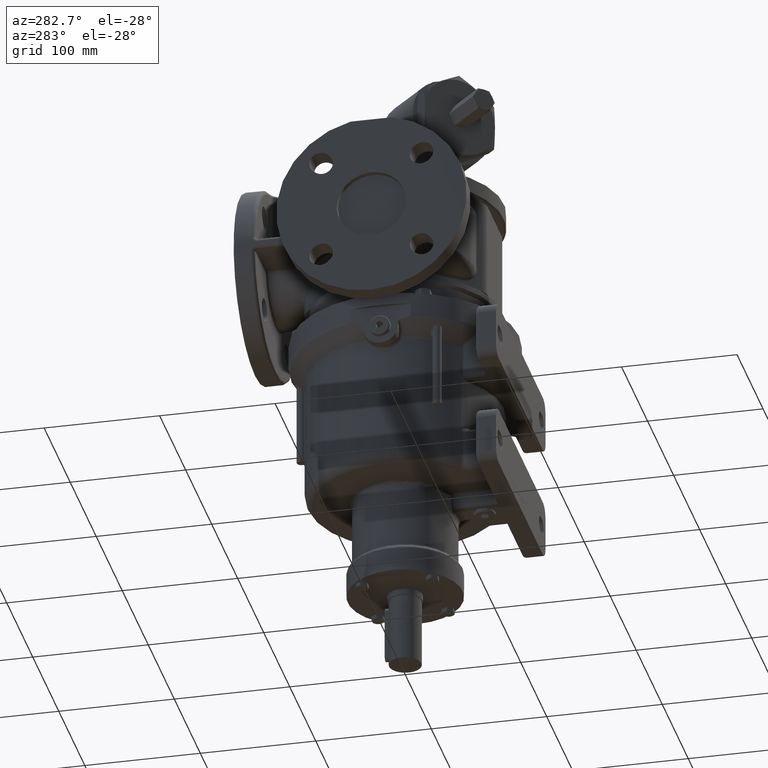
[diagram: clean part render]
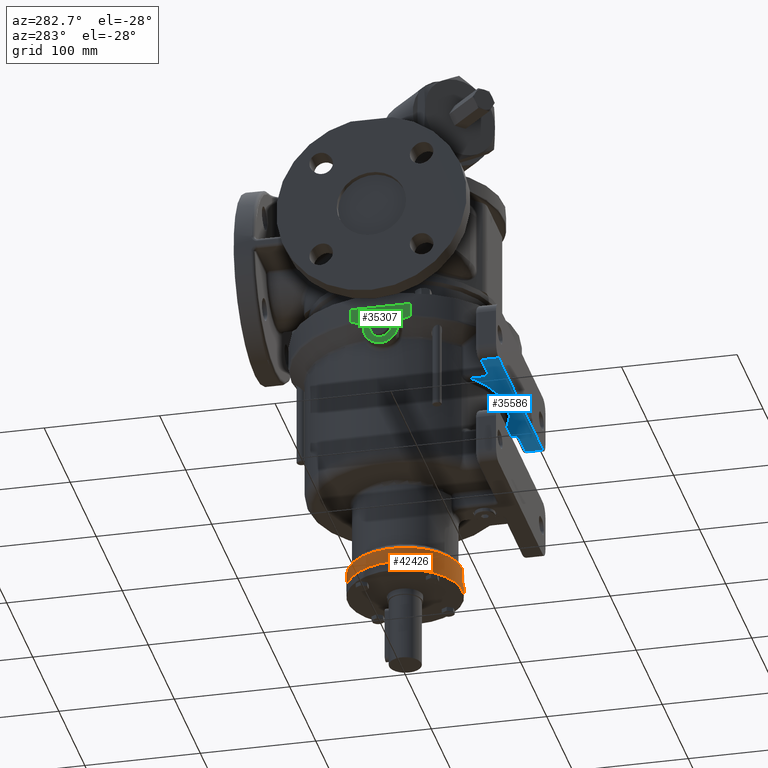
[diagram: same view with three faces highlighted in distinct colors, each labeled with its STEP entity id]
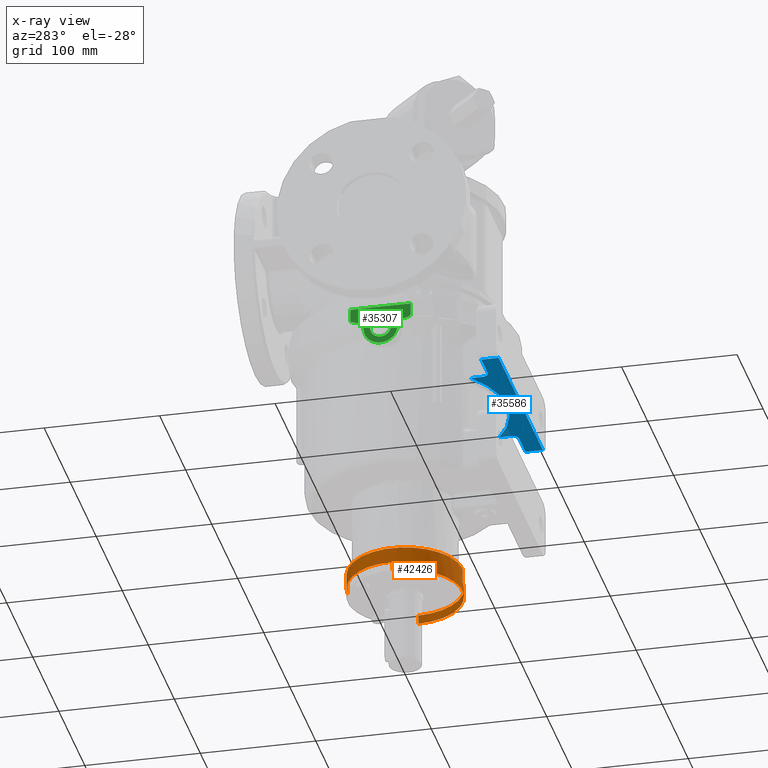
[diagram: x-ray of the same camera — body ghosted, the three highlighted faces saturated]
A machine part, auxiliary view with three faces highlighted in distinct colors.
The next image is the same camera in x-ray (body ghosted, the three faces saturated) — at least one of them is partly hidden behind the body in this view.
Their STEP definitions:

[orange] entity #42426 — the highlighted cylindrical surface (partial cylindrical patch) has radius 49.75 mm, axis along (0, 0, 1).
#10379=CARTESIAN_POINT('',(0.E0,0.E0,-2.285E2));
#10380=DIRECTION('',(0.E0,0.E0,-1.E0));
#10381=DIRECTION('',(1.E0,0.E0,0.E0));
#10382=AXIS2_PLACEMENT_3D('',#10379,#10380,#10381);
#10384=CARTESIAN_POINT('',(0.E0,0.E0,-2.205E2));
#10385=DIRECTION('',(0.E0,0.E0,1.E0));
#10386=DIRECTION('',(0.E0,1.E0,0.E0));
#10387=AXIS2_PLACEMENT_3D('',#10384,#10385,#10386);
#10389=CARTESIAN_POINT('',(0.E0,0.E0,-2.075E2));
#10390=DIRECTION('',(0.E0,0.E0,-1.E0));
#10391=DIRECTION('',(0.E0,-1.E0,0.E0));
#10392=AXIS2_PLACEMENT_3D('',#10389,#10390,#10391);
#10394=DIRECTION('',(0.E0,0.E0,-1.E0));
#10395=VECTOR('',#10394,1.3E1);
#10396=CARTESIAN_POINT('',(-1.906908229874E-14,4.975E1,-2.075E2));
#10397=LINE('',#10396,#10395);
#10398=DIRECTION('',(0.E0,0.E0,1.E0));
#10399=VECTOR('',#10398,8.E0);
#10400=CARTESIAN_POINT('',(-4.975E1,3.695923874484E-14,-2.285E2));
#10401=LINE('',#10400,#10399);
#10407=DIRECTION('',(0.E0,0.E0,1.E0));
#10408=VECTOR('',#10407,8.E0);
#10409=CARTESIAN_POINT('',(4.975E1,-5.103500849649E-14,-2.285E2));
#10410=LINE('',#10409,#10408);
#10411=CARTESIAN_POINT('',(0.E0,0.E0,-2.205E2));
#10412=DIRECTION('',(0.E0,0.E0,1.E0));
#10413=DIRECTION('',(0.E0,-1.E0,0.E0));
#10414=AXIS2_PLACEMENT_3D('',#10411,#10412,#10413);
#10416=DIRECTION('',(0.E0,0.E0,-1.E0));
#10417=VECTOR('',#10416,1.3E1);
#10418=CARTESIAN_POINT('',(0.E0,-4.975E1,-2.075E2));
#10419=LINE('',#10418,#10417);
#21264=CARTESIAN_POINT('',(0.E0,4.975E1,-2.075E2));
#21265=CARTESIAN_POINT('',(1.218523565152E-14,-4.975E1,-2.075E2));
#21266=VERTEX_POINT('',#21264);
#21267=VERTEX_POINT('',#21265);
#21805=CARTESIAN_POINT('',(4.975E1,-2.663705417500E-14,-2.285E2));
#21806=CARTESIAN_POINT('',(-4.975E1,2.054447634924E-14,-2.285E2));
#21807=VERTEX_POINT('',#21805);
#21808=VERTEX_POINT('',#21806);
#21825=CARTESIAN_POINT('',(0.E0,4.975E1,-2.205E2));
#21826=CARTESIAN_POINT('',(-4.975E1,4.114058746720E-14,-2.205E2));
#21827=VERTEX_POINT('',#21825);
#21828=VERTEX_POINT('',#21826);
#21829=CARTESIAN_POINT('',(1.218523565152E-14,-4.975E1,-2.205E2));
#21830=CARTESIAN_POINT('',(4.975E1,-7.923480602153E-14,-2.205E2));
#21831=VERTEX_POINT('',#21829);
#21832=VERTEX_POINT('',#21830);
#42404=CARTESIAN_POINT('',(0.E0,0.E0,-2.37975E2));
#42405=DIRECTION('',(0.E0,0.E0,1.E0));
#42406=DIRECTION('',(0.E0,-1.E0,0.E0));
#42407=AXIS2_PLACEMENT_3D('',#42404,#42405,#42406);
#42408=CYLINDRICAL_SURFACE('',#42407,4.975E1);
#42410=ORIENTED_EDGE('',*,*,#42409,.T.);
#42412=ORIENTED_EDGE('',*,*,#42411,.T.);
#42414=ORIENTED_EDGE('',*,*,#42413,.F.);
#42416=ORIENTED_EDGE('',*,*,#42415,.T.);
#42418=ORIENTED_EDGE('',*,*,#42417,.T.);
#42420=ORIENTED_EDGE('',*,*,#42419,.F.);
#42422=ORIENTED_EDGE('',*,*,#42421,.F.);
#42423=ORIENTED_EDGE('',*,*,#39476,.F.);
#42424=EDGE_LOOP('',(#42410,#42412,#42414,#42416,#42418,#42420,#42422,#42423));
#42425=FACE_OUTER_BOUND('',#42424,.F.);
#42426=ADVANCED_FACE('',(#42425),#42408,.T.);
#10383=CIRCLE('',#10382,4.975E1);
#10388=CIRCLE('',#10387,4.975E1);
#10393=CIRCLE('',#10392,4.975E1);
#10415=CIRCLE('',#10414,4.975E1);
#39476=EDGE_CURVE('',#21267,#21266,#10393,.T.);
#42409=EDGE_CURVE('',#21267,#21831,#10419,.T.);
#42411=EDGE_CURVE('',#21831,#21832,#10415,.T.);
#42413=EDGE_CURVE('',#21807,#21832,#10410,.T.);
#42415=EDGE_CURVE('',#21807,#21808,#10383,.T.);
#42417=EDGE_CURVE('',#21808,#21828,#10401,.T.);
#42419=EDGE_CURVE('',#21827,#21828,#10388,.T.);
#42421=EDGE_CURVE('',#21266,#21827,#10397,.T.);

[blue] entity #35586 — the highlighted planar face has unit normal (0, 0, -1).
#6345=DIRECTION('',(1.E0,0.E0,0.E0));
#6346=VECTOR('',#6345,1.7E2);
#6347=CARTESIAN_POINT('',(-8.5E1,-1.E2,-5.55E1));
#6348=LINE('',#6347,#6346);
#6349=DIRECTION('',(0.E0,1.E0,0.E0));
#6350=VECTOR('',#6349,1.5E1);
#6351=CARTESIAN_POINT('',(8.5E1,-1.E2,-5.55E1));
#6352=LINE('',#6351,#6350);
#6353=DIRECTION('',(1.E0,0.E0,0.E0));
#6354=VECTOR('',#6353,2.45E1);
#6355=CARTESIAN_POINT('',(6.05E1,-8.5E1,-5.55E1));
#6356=LINE('',#6355,#6354);
#6357=CARTESIAN_POINT('',(6.05E1,-7.9E1,-5.55E1));
#6358=DIRECTION('',(0.E0,0.E0,1.E0));
#6359=DIRECTION('',(-1.E0,0.E0,0.E0));
#6360=AXIS2_PLACEMENT_3D('',#6357,#6358,#6359);
#6362=DIRECTION('',(0.E0,-1.E0,0.E0));
#6363=VECTOR('',#6362,9.907670469147E0);
#6364=CARTESIAN_POINT('',(5.45E1,-6.909232953085E1,-5.55E1));
#6365=LINE('',#6364,#6363);
#6366=DIRECTION('',(0.E0,1.E0,0.E0));
#6367=VECTOR('',#6366,9.907670469147E0);
#6368=CARTESIAN_POINT('',(-5.45E1,-7.9E1,-5.55E1));
#6369=LINE('',#6368,#6367);
#6370=CARTESIAN_POINT('',(-6.05E1,-7.9E1,-5.55E1));
#6371=DIRECTION('',(0.E0,0.E0,1.E0));
#6372=DIRECTION('',(-2.605323364454E-14,-1.E0,0.E0));
#6373=AXIS2_PLACEMENT_3D('',#6370,#6371,#6372);
#6375=DIRECTION('',(1.E0,0.E0,0.E0));
#6376=VECTOR('',#6375,2.45E1);
#6377=CARTESIAN_POINT('',(-8.5E1,-8.5E1,-5.55E1));
#6378=LINE('',#6377,#6376);
#6379=DIRECTION('',(0.E0,-1.E0,0.E0));
#6380=VECTOR('',#6379,1.5E1);
#6381=CARTESIAN_POINT('',(-8.5E1,-8.5E1,-5.55E1));
#6382=LINE('',#6381,#6380);
#7355=CARTESIAN_POINT('',(-5.45E1,-6.909232953085E1,-5.55E1));
#8774=CARTESIAN_POINT('',(5.45E1,-6.909232953085E1,-5.55E1));
#8883=CARTESIAN_POINT('',(0.E0,0.E0,-5.55E1));
#8884=DIRECTION('',(0.E0,0.E0,1.E0));
#8885=DIRECTION('',(-6.193181818182E-1,-7.851401083051E-1,0.E0));
#8886=AXIS2_PLACEMENT_3D('',#8883,#8884,#8885);
#21458=CARTESIAN_POINT('',(8.5E1,-8.5E1,-5.55E1));
#21459=VERTEX_POINT('',#21458);
#21462=CARTESIAN_POINT('',(6.05E1,-8.5E1,-5.55E1));
#21463=VERTEX_POINT('',#21462);
#21466=CARTESIAN_POINT('',(5.45E1,-7.9E1,-5.55E1));
#21467=VERTEX_POINT('',#21466);
#21496=CARTESIAN_POINT('',(-6.05E1,-8.5E1,-5.55E1));
#21497=CARTESIAN_POINT('',(-5.45E1,-7.9E1,-5.55E1));
#21498=VERTEX_POINT('',#21496);
#21499=VERTEX_POINT('',#21497);
#21504=CARTESIAN_POINT('',(-8.5E1,-8.5E1,-5.55E1));
#21505=VERTEX_POINT('',#21504);
#21589=VERTEX_POINT('',#7355);
#21595=VERTEX_POINT('',#8774);
#21632=CARTESIAN_POINT('',(-8.5E1,-1.E2,-5.55E1));
#21633=CARTESIAN_POINT('',(8.5E1,-1.E2,-5.55E1));
#21634=VERTEX_POINT('',#21632);
#21635=VERTEX_POINT('',#21633);
#35560=CARTESIAN_POINT('',(-9.5E1,-1.03E2,-5.55E1));
#35561=DIRECTION('',(0.E0,0.E0,-1.E0));
#35562=DIRECTION('',(0.E0,1.E0,0.E0));
#35563=AXIS2_PLACEMENT_3D('',#35560,#35561,#35562);
#35564=PLANE('',#35563);
#35566=ORIENTED_EDGE('',*,*,#35565,.T.);
#35568=ORIENTED_EDGE('',*,*,#35567,.T.);
#35570=ORIENTED_EDGE('',*,*,#35569,.F.);
#35572=ORIENTED_EDGE('',*,*,#35571,.F.);
#35574=ORIENTED_EDGE('',*,*,#35573,.F.);
#35576=ORIENTED_EDGE('',*,*,#35575,.F.);
#35578=ORIENTED_EDGE('',*,*,#35577,.F.);
#35579=ORIENTED_EDGE('',*,*,#35550,.F.);
#35581=ORIENTED_EDGE('',*,*,#35580,.F.);
#35583=ORIENTED_EDGE('',*,*,#35582,.T.);
#35584=EDGE_LOOP('',(#35566,#35568,#35570,#35572,#35574,#35576,#35578,#35579,
#35581,#35583));
#35585=FACE_OUTER_BOUND('',#35584,.F.);
#35586=ADVANCED_FACE('',(#35585),#35564,.T.);
#6361=CIRCLE('',#6360,6.E0);
#6374=CIRCLE('',#6373,6.E0);
#8887=CIRCLE('',#8886,8.8E1);
#35550=EDGE_CURVE('',#21498,#21499,#6374,.T.);
#35565=EDGE_CURVE('',#21634,#21635,#6348,.T.);
#35567=EDGE_CURVE('',#21635,#21459,#6352,.T.);
#35569=EDGE_CURVE('',#21463,#21459,#6356,.T.);
#35571=EDGE_CURVE('',#21467,#21463,#6361,.T.);
#35573=EDGE_CURVE('',#21595,#21467,#6365,.T.);
#35575=EDGE_CURVE('',#21589,#21595,#8887,.T.);
#35577=EDGE_CURVE('',#21499,#21589,#6369,.T.);
#35580=EDGE_CURVE('',#21505,#21498,#6378,.T.);
#35582=EDGE_CURVE('',#21505,#21634,#6382,.T.);

[green] entity #35307 — the highlighted planar face has unit normal (1, 0, 0).
#6020=DIRECTION('',(0.E0,0.E0,1.E0));
#6021=VECTOR('',#6020,1.075735931288E1);
#6022=CARTESIAN_POINT('',(-9.5E1,2.602402735935E1,-1.075735931288E1));
#6023=LINE('',#6022,#6021);
#6159=DIRECTION('',(0.E0,0.E0,1.E0));
#6160=VECTOR('',#6159,1.075735931288E1);
#6161=CARTESIAN_POINT('',(-9.5E1,-2.602402735935E1,-1.075735931288E1));
#6162=LINE('',#6161,#6160);
#6168=DIRECTION('',(0.E0,1.E0,0.E0));
#6169=VECTOR('',#6168,5.204805471869E1);
#6170=CARTESIAN_POINT('',(-9.5E1,-2.602402735935E1,2.280841422416E-14));
#6171=LINE('',#6170,#6169);
#6172=CARTESIAN_POINT('',(-9.5E1,0.E0,-1.95E1));
#6173=DIRECTION('',(-1.E0,0.E0,0.E0));
#6174=DIRECTION('',(0.E0,-1.E0,0.E0));
#6175=AXIS2_PLACEMENT_3D('',#6172,#6173,#6174);
#6177=CARTESIAN_POINT('',(-9.5E1,0.E0,-1.95E1));
#6178=DIRECTION('',(-1.E0,0.E0,0.E0));
#6179=DIRECTION('',(0.E0,1.E0,0.E0));
#6180=AXIS2_PLACEMENT_3D('',#6177,#6178,#6179);
#6182=CARTESIAN_POINT('',(-9.5E1,-2.602402735935E1,-1.075735931288E1));
#6183=CARTESIAN_POINT('',(-9.5E1,-2.602402735935E1,-1.077876634053E1));
#6184=CARTESIAN_POINT('',(-9.5E1,-2.602228922231E1,-1.082174701972E1));
#6185=CARTESIAN_POINT('',(-9.5E1,-2.601439247119E1,-1.088651587326E1));
#6186=CARTESIAN_POINT('',(-9.5E1,-2.600097771708E1,-1.095218880590E1));
#6187=CARTESIAN_POINT('',(-9.5E1,-2.598165438894E1,-1.101916418562E1));
#6188=CARTESIAN_POINT('',(-9.5E1,-2.595585628909E1,-1.108790616760E1));
#6189=CARTESIAN_POINT('',(-9.5E1,-2.592282007476E1,-1.115887698069E1));
#6190=CARTESIAN_POINT('',(-9.5E1,-2.588155811491E1,-1.123255585912E1));
#6191=CARTESIAN_POINT('',(-9.5E1,-2.583082262835E1,-1.130943509460E1));
#6192=CARTESIAN_POINT('',(-9.5E1,-2.576905949618E1,-1.139002154177E1));
#6193=CARTESIAN_POINT('',(-9.5E1,-2.569435648396E1,-1.147482831608E1));
#6194=CARTESIAN_POINT('',(-9.5E1,-2.560437785030E1,-1.156436819514E1));
#6195=CARTESIAN_POINT('',(-9.5E1,-2.549629106406E1,-1.165914075882E1));
#6196=CARTESIAN_POINT('',(-9.5E1,-2.536663719405E1,-1.175964408733E1));
#6197=CARTESIAN_POINT('',(-9.5E1,-2.521143818487E1,-1.186618794277E1));
#6198=CARTESIAN_POINT('',(-9.5E1,-2.502670608981E1,-1.197858317398E1));
#6199=CARTESIAN_POINT('',(-9.5E1,-2.480829373420E1,-1.209637626300E1));
#6200=CARTESIAN_POINT('',(-9.5E1,-2.455147956071E1,-1.221907841222E1));
#6201=CARTESIAN_POINT('',(-9.5E1,-2.425100703984E1,-1.234606378886E1));
#6202=CARTESIAN_POINT('',(-9.5E1,-2.390118883754E1,-1.247651430762E1));
#6203=CARTESIAN_POINT('',(-9.5E1,-2.349522155608E1,-1.260956851266E1));
#6204=CARTESIAN_POINT('',(-9.5E1,-2.302647273712E1,-1.274395754368E1));
#6205=CARTESIAN_POINT('',(-9.5E1,-2.266382443389E1,-1.283417417449E1));
#6206=CARTESIAN_POINT('',(-9.5E1,-2.247047364031E1,-1.287867965644E1));
#6804=CARTESIAN_POINT('',(-9.5E1,2.247047364031E1,-1.287867965644E1));
#6805=CARTESIAN_POINT('',(-9.5E1,2.266381945337E1,-1.283417532091E1));
#6806=CARTESIAN_POINT('',(-9.5E1,2.302645999464E1,-1.274396082169E1));
#6807=CARTESIAN_POINT('',(-9.5E1,2.349520334809E1,-1.260957404066E1));
#6808=CARTESIAN_POINT('',(-9.5E1,2.390117206191E1,-1.247652020689E1));
#6809=CARTESIAN_POINT('',(-9.5E1,2.425099611652E1,-1.234606821720E1));
#6810=CARTESIAN_POINT('',(-9.5E1,2.455147502064E1,-1.221908053455E1));
#6811=CARTESIAN_POINT('',(-9.5E1,2.480829245505E1,-1.209637694918E1));
#6812=CARTESIAN_POINT('',(-9.5E1,2.502670620991E1,-1.197858313304E1));
#6813=CARTESIAN_POINT('',(-9.5E1,2.521143938208E1,-1.186618719280E1));
#6814=CARTESIAN_POINT('',(-9.5E1,2.536663863605E1,-1.175964303765E1));
#6815=CARTESIAN_POINT('',(-9.5E1,2.549629222387E1,-1.165913980166E1));
#6816=CARTESIAN_POINT('',(-9.5E1,2.560437890738E1,-1.156436721018E1));
#6817=CARTESIAN_POINT('',(-9.5E1,2.569435735752E1,-1.147482738621E1));
#6818=CARTESIAN_POINT('',(-9.5E1,2.576906021148E1,-1.139002067051E1));
#6819=CARTESIAN_POINT('',(-9.5E1,2.583082319438E1,-1.130943429708E1));
#6820=CARTESIAN_POINT('',(-9.5E1,2.588155855078E1,-1.123255514008E1));
#6821=CARTESIAN_POINT('',(-9.5E1,2.592282039396E1,-1.115887635239E1));
#6822=CARTESIAN_POINT('',(-9.5E1,2.595585650932E1,-1.108790563667E1));
#6823=CARTESIAN_POINT('',(-9.5E1,2.598165452840E1,-1.101916375648E1));
#6824=CARTESIAN_POINT('',(-9.5E1,2.600097779416E1,-1.095218848108E1));
#6825=CARTESIAN_POINT('',(-9.5E1,2.601439250385E1,-1.088651565511E1));
#6826=CARTESIAN_POINT('',(-9.5E1,2.602228922842E1,-1.082174690825E1));
#6827=CARTESIAN_POINT('',(-9.5E1,2.602402735935E1,-1.077876630306E1));
#6828=CARTESIAN_POINT('',(-9.5E1,2.602402735935E1,-1.075735931288E1));
#6856=CARTESIAN_POINT('',(-9.5E1,2.247047364031E1,-1.287867965644E1));
#6857=CARTESIAN_POINT('',(-9.5E1,2.192824920039E1,-1.300348886760E1));
#6858=CARTESIAN_POINT('',(-9.5E1,2.084549862991E1,-1.324415795765E1));
#6859=CARTESIAN_POINT('',(-9.5E1,1.922680506453E1,-1.357821014218E1));
#6860=CARTESIAN_POINT('',(-9.5E1,1.815060332488E1,-1.378306616397E1));
#6861=CARTESIAN_POINT('',(-9.5E1,1.761329098931E1,-1.388101625770E1));
#7031=CARTESIAN_POINT('',(-9.5E1,1.536090017432E1,-1.605229280953E1));
#7032=CARTESIAN_POINT('',(-9.5E1,1.539094053852E1,-1.597437110757E1));
#7033=CARTESIAN_POINT('',(-9.5E1,1.545384202943E1,-1.582295380255E1));
#7034=CARTESIAN_POINT('',(-9.5E1,1.555610804488E1,-1.560846732814E1));
#7035=CARTESIAN_POINT('',(-9.5E1,1.566509929819E1,-1.540743374147E1));
#7036=CARTESIAN_POINT('',(-9.5E1,1.577984483884E1,-1.521999188222E1));
#7037=CARTESIAN_POINT('',(-9.5E1,1.589938596128E1,-1.504621620468E1));
#7038=CARTESIAN_POINT('',(-9.5E1,1.602285450612E1,-1.488598635177E1));
#7039=CARTESIAN_POINT('',(-9.5E1,1.614946545431E1,-1.473906202532E1));
#7040=CARTESIAN_POINT('',(-9.5E1,1.627852722365E1,-1.460510079125E1));
#7041=CARTESIAN_POINT('',(-9.5E1,1.640944180959E1,-1.448368935148E1));
#7042=CARTESIAN_POINT('',(-9.5E1,1.654170330585E1,-1.437436811902E1));
#7043=CARTESIAN_POINT('',(-9.5E1,1.667489349037E1,-1.427665385099E1));
#7044=CARTESIAN_POINT('',(-9.5E1,1.680867580171E1,-1.419005877313E1));
#7045=CARTESIAN_POINT('',(-9.5E1,1.694278788264E1,-1.411410675567E1));
#7046=CARTESIAN_POINT('',(-9.5E1,1.707703416360E1,-1.404834622124E1));
#7047=CARTESIAN_POINT('',(-9.5E1,1.721127678852E1,-1.399236098545E1));
#7048=CARTESIAN_POINT('',(-9.5E1,1.734542945894E1,-1.394577808638E1));
#7049=CARTESIAN_POINT('',(-9.5E1,1.747944217397E1,-1.390827534801E1));
#7050=CARTESIAN_POINT('',(-9.5E1,1.756869554165E1,-1.388914584640E1));
#7051=CARTESIAN_POINT('',(-9.5E1,1.761329098931E1,-1.388101625770E1));
#7063=CARTESIAN_POINT('',(-9.5E1,1.482842712468E1,-1.903475177538E1));
#7064=CARTESIAN_POINT('',(-9.5E1,1.482842715207E1,-1.891484258526E1));
#7065=CARTESIAN_POINT('',(-9.5E1,1.483322741225E1,-1.867585781948E1));
#7066=CARTESIAN_POINT('',(-9.5E1,1.485473324193E1,-1.831886341678E1));
#7067=CARTESIAN_POINT('',(-9.5E1,1.489025137312E1,-1.796640613692E1));
#7068=CARTESIAN_POINT('',(-9.5E1,1.493930042918E1,-1.762035035958E1));
#7069=CARTESIAN_POINT('',(-9.5E1,1.500122454345E1,-1.728272772372E1));
#7070=CARTESIAN_POINT('',(-9.5E1,1.507521621980E1,-1.695532556524E1));
#7071=CARTESIAN_POINT('',(-9.5E1,1.516031730259E1,-1.663980851980E1));
#7072=CARTESIAN_POINT('',(-9.5E1,1.525552640973E1,-1.633745773854E1));
#7073=CARTESIAN_POINT('',(-9.5E1,1.532485214039E1,-1.614579806925E1));
#7074=CARTESIAN_POINT('',(-9.5E1,1.536090017432E1,-1.605229280953E1));
#7081=DIRECTION('',(0.E0,-1.475536773324E-10,1.E0));
#7082=VECTOR('',#7081,4.652482246227E-1);
#7083=CARTESIAN_POINT('',(-9.5E1,1.482842712475E1,-1.95E1));
#7084=LINE('',#7083,#7082);
#7090=CARTESIAN_POINT('',(-9.5E1,0.E0,-1.95E1));
#7091=DIRECTION('',(1.E0,0.E0,0.E0));
#7092=DIRECTION('',(0.E0,-1.E0,0.E0));
#7093=AXIS2_PLACEMENT_3D('',#7090,#7091,#7092);
#7100=DIRECTION('',(0.E0,-8.840391878786E-11,-1.E0));
#7101=VECTOR('',#7100,4.652482245518E-1);
#7102=CARTESIAN_POINT('',(-9.5E1,-1.482842712471E1,-1.903475177545E1));
#7103=LINE('',#7102,#7101);
#7109=CARTESIAN_POINT('',(-9.5E1,-1.536090130410E1,-1.605228992066E1));
#7110=CARTESIAN_POINT('',(-9.5E1,-1.532484954113E1,-1.614580428538E1));
#7111=CARTESIAN_POINT('',(-9.5E1,-1.525551886314E1,-1.633747949100E1));
#7112=CARTESIAN_POINT('',(-9.5E1,-1.516030590815E1,-1.663984690575E1));
#7113=CARTESIAN_POINT('',(-9.5E1,-1.507520446507E1,-1.695537283592E1));
#7114=CARTESIAN_POINT('',(-9.5E1,-1.500121441566E1,-1.728277738286E1));
#7115=CARTESIAN_POINT('',(-9.5E1,-1.493929306242E1,-1.762039631936E1));
#7116=CARTESIAN_POINT('',(-9.5E1,-1.489024703286E1,-1.796644329825E1));
#7117=CARTESIAN_POINT('',(-9.5E1,-1.485473148207E1,-1.831888762273E1));
#7118=CARTESIAN_POINT('',(-9.5E1,-1.483322717478E1,-1.867586806484E1));
#7119=CARTESIAN_POINT('',(-9.5E1,-1.482842715333E1,-1.891484578459E1));
#7120=CARTESIAN_POINT('',(-9.5E1,-1.482842712471E1,-1.903475177545E1));
#7122=CARTESIAN_POINT('',(-9.5E1,-1.761329098185E1,-1.388101625872E1));
#7123=CARTESIAN_POINT('',(-9.5E1,-1.756869556935E1,-1.388914584100E1));
#7124=CARTESIAN_POINT('',(-9.5E1,-1.747944225016E1,-1.390827533E1));
#7125=CARTESIAN_POINT('',(-9.5E1,-1.734542965002E1,-1.394577802818E1));
#7126=CARTESIAN_POINT('',(-9.5E1,-1.721127708356E1,-1.399236087422E1));
#7127=CARTESIAN_POINT('',(-9.5E1,-1.707703456568E1,-1.404834604083E1));
#7128=CARTESIAN_POINT('',(-9.5E1,-1.694278839070E1,-1.411410648955E1));
#7129=CARTESIAN_POINT('',(-9.5E1,-1.680867641517E1,-1.419005840352E1));
#7130=CARTESIAN_POINT('',(-9.5E1,-1.667489420762E1,-1.427665335894E1));
#7131=CARTESIAN_POINT('',(-9.5E1,-1.654170412433E1,-1.437436748443E1));
#7132=CARTESIAN_POINT('',(-9.5E1,-1.640944272542E1,-1.448368855311E1));
#7133=CARTESIAN_POINT('',(-9.5E1,-1.627852823133E1,-1.460509980689E1));
#7134=CARTESIAN_POINT('',(-9.5E1,-1.614946654647E1,-1.473906083191E1));
#7135=CARTESIAN_POINT('',(-9.5E1,-1.602285567299E1,-1.488598492634E1));
#7136=CARTESIAN_POINT('',(-9.5E1,-1.589938719130E1,-1.504621452244E1));
#7137=CARTESIAN_POINT('',(-9.5E1,-1.577984611511E1,-1.521998992592E1));
#7138=CARTESIAN_POINT('',(-9.5E1,-1.566510061057E1,-1.540743146933E1));
#7139=CARTESIAN_POINT('',(-9.5E1,-1.555610934464E1,-1.560846479623E1));
#7140=CARTESIAN_POINT('',(-9.5E1,-1.545384339735E1,-1.582295071341E1));
#7141=CARTESIAN_POINT('',(-9.5E1,-1.539094167800E1,-1.597436833050E1));
#7142=CARTESIAN_POINT('',(-9.5E1,-1.536090130410E1,-1.605228992066E1));
#7159=CARTESIAN_POINT('',(-9.5E1,-1.761329098185E1,-1.388101625872E1));
#7160=CARTESIAN_POINT('',(-9.5E1,-1.815064639988E1,-1.378305831121E1));
#7161=CARTESIAN_POINT('',(-9.5E1,-1.922690537515E1,-1.357819048843E1));
#7162=CARTESIAN_POINT('',(-9.5E1,-2.084560343901E1,-1.324413526992E1));
#7163=CARTESIAN_POINT('',(-9.5E1,-2.192829400964E1,-1.300347855341E1));
#7164=CARTESIAN_POINT('',(-9.5E1,-2.247047364031E1,-1.287867965644E1));
#21647=VERTEX_POINT('',#6856);
#21648=VERTEX_POINT('',#6861);
#21649=VERTEX_POINT('',#7159);
#21650=VERTEX_POINT('',#7164);
#21655=VERTEX_POINT('',#6182);
#21656=VERTEX_POINT('',#6828);
#21659=VERTEX_POINT('',#7031);
#21660=VERTEX_POINT('',#7142);
#21663=VERTEX_POINT('',#7120);
#21664=CARTESIAN_POINT('',(-9.5E1,-1.482842712475E1,-1.95E1));
#21665=VERTEX_POINT('',#21664);
#21666=CARTESIAN_POINT('',(-9.5E1,1.482842712475E1,-1.95E1));
#21667=VERTEX_POINT('',#21666);
#21668=CARTESIAN_POINT('',(-9.5E1,1.482842712468E1,-1.903475177538E1));
#21669=VERTEX_POINT('',#21668);
#21989=CARTESIAN_POINT('',(-9.5E1,-9.E0,-1.95E1));
#21990=CARTESIAN_POINT('',(-9.5E1,9.E0,-1.95E1));
#21991=VERTEX_POINT('',#21989);
#21992=VERTEX_POINT('',#21990);
#22161=CARTESIAN_POINT('',(-9.5E1,-2.602402735935E1,2.280841422416E-14));
#22162=CARTESIAN_POINT('',(-9.5E1,2.602402735935E1,4.672855455153E-14));
#22163=VERTEX_POINT('',#22161);
#22164=VERTEX_POINT('',#22162);
#35269=CARTESIAN_POINT('',(-9.5E1,-8.2E1,0.E0));
#35270=DIRECTION('',(1.E0,0.E0,0.E0));
#35271=DIRECTION('',(0.E0,1.E0,0.E0));
#35272=AXIS2_PLACEMENT_3D('',#35269,#35270,#35271);
#35273=PLANE('',#35272);
#35274=ORIENTED_EDGE('',*,*,#35253,.F.);
#35276=ORIENTED_EDGE('',*,*,#35275,.T.);
#35278=ORIENTED_EDGE('',*,*,#35277,.F.);
#35280=ORIENTED_EDGE('',*,*,#35279,.T.);
#35282=ORIENTED_EDGE('',*,*,#35281,.T.);
#35284=ORIENTED_EDGE('',*,*,#35283,.T.);
#35286=ORIENTED_EDGE('',*,*,#35285,.T.);
#35288=ORIENTED_EDGE('',*,*,#35287,.T.);
#35290=ORIENTED_EDGE('',*,*,#35289,.T.);
#35292=ORIENTED_EDGE('',*,*,#35291,.T.);
#35294=ORIENTED_EDGE('',*,*,#35293,.F.);
#35296=ORIENTED_EDGE('',*,*,#35295,.T.);
#35297=ORIENTED_EDGE('',*,*,#35218,.T.);
#35298=ORIENTED_EDGE('',*,*,#35263,.F.);
#35299=EDGE_LOOP('',(#35274,#35276,#35278,#35280,#35282,#35284,#35286,#35288,
#35290,#35292,#35294,#35296,#35297,#35298));
#35300=FACE_OUTER_BOUND('',#35299,.F.);
#35302=ORIENTED_EDGE('',*,*,#35301,.T.);
#35304=ORIENTED_EDGE('',*,*,#35303,.T.);
#35305=EDGE_LOOP('',(#35302,#35304));
#35306=FACE_BOUND('',#35305,.F.);
#35307=ADVANCED_FACE('',(#35300,#35306),#35273,.F.);
#6176=CIRCLE('',#6175,9.E0);
#6181=CIRCLE('',#6180,9.E0);
#6207=B_SPLINE_CURVE_WITH_KNOTS('',3,(#6182,#6183,#6184,#6185,#6186,#6187,#6188,
#6189,#6190,#6191,#6192,#6193,#6194,#6195,#6196,#6197,#6198,#6199,#6200,#6201,
#6202,#6203,#6204,#6205,#6206),.UNSPECIFIED.,.F.,.F.,(4,1,1,1,1,1,1,1,1,1,1,1,1,
1,1,1,1,1,1,1,1,1,4),(0.E0,4.545454545455E-2,9.090909090909E-2,
1.363636363636E-1,1.818181818182E-1,2.272727272727E-1,2.727272727273E-1,
3.181818181818E-1,3.636363636364E-1,4.090909090909E-1,4.545454545455E-1,5.E-1,
5.454545454545E-1,5.909090909091E-1,6.363636363636E-1,6.818181818182E-1,
7.272727272727E-1,7.727272727273E-1,8.181818181818E-1,8.636363636364E-1,
9.090909090909E-1,9.545454545455E-1,1.E0),.UNSPECIFIED.);
#6829=B_SPLINE_CURVE_WITH_KNOTS('',3,(#6804,#6805,#6806,#6807,#6808,#6809,#6810,
#6811,#6812,#6813,#6814,#6815,#6816,#6817,#6818,#6819,#6820,#6821,#6822,#6823,
#6824,#6825,#6826,#6827,#6828),.UNSPECIFIED.,.F.,.F.,(4,1,1,1,1,1,1,1,1,1,1,1,1,
1,1,1,1,1,1,1,1,1,4),(0.E0,4.545454545455E-2,9.090909090909E-2,
1.363636363636E-1,1.818181818182E-1,2.272727272727E-1,2.727272727273E-1,
3.181818181818E-1,3.636363636364E-1,4.090909090909E-1,4.545454545455E-1,5.E-1,
5.454545454545E-1,5.909090909091E-1,6.363636363636E-1,6.818181818182E-1,
7.272727272727E-1,7.727272727273E-1,8.181818181818E-1,8.636363636364E-1,
9.090909090909E-1,9.545454545455E-1,1.E0),.UNSPECIFIED.);
#6862=B_SPLINE_CURVE_WITH_KNOTS('',3,(#6856,#6857,#6858,#6859,#6860,#6861),
.UNSPECIFIED.,.F.,.F.,(4,1,1,4),(0.E0,3.333333333333E-1,6.666666666667E-1,1.E0),
.UNSPECIFIED.);
#7052=B_SPLINE_CURVE_WITH_KNOTS('',3,(#7031,#7032,#7033,#7034,#7035,#7036,#7037,
#7038,#7039,#7040,#7041,#7042,#7043,#7044,#7045,#7046,#7047,#7048,#7049,#7050,
#7051),.UNSPECIFIED.,.F.,.F.,(4,1,1,1,1,1,1,1,1,1,1,1,1,1,1,1,1,1,4),(0.E0,
5.555555555556E-2,1.111111111111E-1,1.666666666667E-1,2.222222222222E-1,
2.777777777778E-1,3.333333333333E-1,3.888888888889E-1,4.444444444444E-1,5.E-1,
5.555555555556E-1,6.111111111111E-1,6.666666666667E-1,7.222222222222E-1,
7.777777777778E-1,8.333333333333E-1,8.888888888889E-1,9.444444444444E-1,1.E0),
.UNSPECIFIED.);
#7075=B_SPLINE_CURVE_WITH_KNOTS('',3,(#7063,#7064,#7065,#7066,#7067,#7068,#7069,
#7070,#7071,#7072,#7073,#7074),.UNSPECIFIED.,.F.,.F.,(4,1,1,1,1,1,1,1,1,4),
(0.E0,1.111111111111E-1,2.222222222222E-1,3.333333333333E-1,4.444444444444E-1,
5.555555555556E-1,6.666666666667E-1,7.777777777778E-1,8.888888888889E-1,1.E0),
.UNSPECIFIED.);
#7094=CIRCLE('',#7093,1.482842712475E1);
#7121=B_SPLINE_CURVE_WITH_KNOTS('',3,(#7109,#7110,#7111,#7112,#7113,#7114,#7115,
#7116,#7117,#7118,#7119,#7120),.UNSPECIFIED.,.F.,.F.,(4,1,1,1,1,1,1,1,1,4),
(0.E0,1.111111111111E-1,2.222222222222E-1,3.333333333333E-1,4.444444444444E-1,
5.555555555556E-1,6.666666666667E-1,7.777777777778E-1,8.888888888889E-1,1.E0),
.UNSPECIFIED.);
#7143=B_SPLINE_CURVE_WITH_KNOTS('',3,(#7122,#7123,#7124,#7125,#7126,#7127,#7128,
#7129,#7130,#7131,#7132,#7133,#7134,#7135,#7136,#7137,#7138,#7139,#7140,#7141,
#7142),.UNSPECIFIED.,.F.,.F.,(4,1,1,1,1,1,1,1,1,1,1,1,1,1,1,1,1,1,4),(0.E0,
5.555555555556E-2,1.111111111111E-1,1.666666666667E-1,2.222222222222E-1,
2.777777777778E-1,3.333333333333E-1,3.888888888889E-1,4.444444444444E-1,5.E-1,
5.555555555556E-1,6.111111111111E-1,6.666666666667E-1,7.222222222222E-1,
7.777777777778E-1,8.333333333333E-1,8.888888888889E-1,9.444444444444E-1,1.E0),
.UNSPECIFIED.);
#7165=B_SPLINE_CURVE_WITH_KNOTS('',3,(#7159,#7160,#7161,#7162,#7163,#7164),
.UNSPECIFIED.,.F.,.F.,(4,1,1,4),(0.E0,3.333333333333E-1,6.666666666667E-1,1.E0),
.UNSPECIFIED.);
#35218=EDGE_CURVE('',#21656,#22164,#6023,.T.);
#35253=EDGE_CURVE('',#21655,#22163,#6162,.T.);
#35263=EDGE_CURVE('',#22163,#22164,#6171,.T.);
#35275=EDGE_CURVE('',#21655,#21650,#6207,.T.);
#35277=EDGE_CURVE('',#21649,#21650,#7165,.T.);
#35279=EDGE_CURVE('',#21649,#21660,#7143,.T.);
#35281=EDGE_CURVE('',#21660,#21663,#7121,.T.);
#35283=EDGE_CURVE('',#21663,#21665,#7103,.T.);
#35285=EDGE_CURVE('',#21665,#21667,#7094,.T.);
#35287=EDGE_CURVE('',#21667,#21669,#7084,.T.);
#35289=EDGE_CURVE('',#21669,#21659,#7075,.T.);
#35291=EDGE_CURVE('',#21659,#21648,#7052,.T.);
#35293=EDGE_CURVE('',#21647,#21648,#6862,.T.);
#35295=EDGE_CURVE('',#21647,#21656,#6829,.T.);
#35301=EDGE_CURVE('',#21991,#21992,#6176,.T.);
#35303=EDGE_CURVE('',#21992,#21991,#6181,.T.);